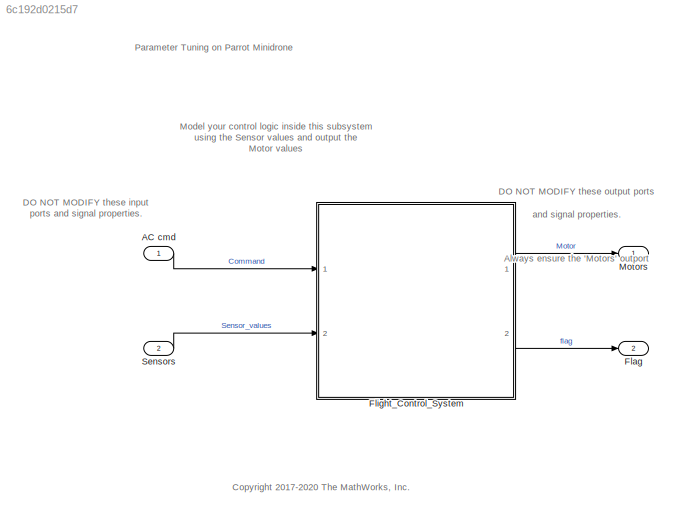
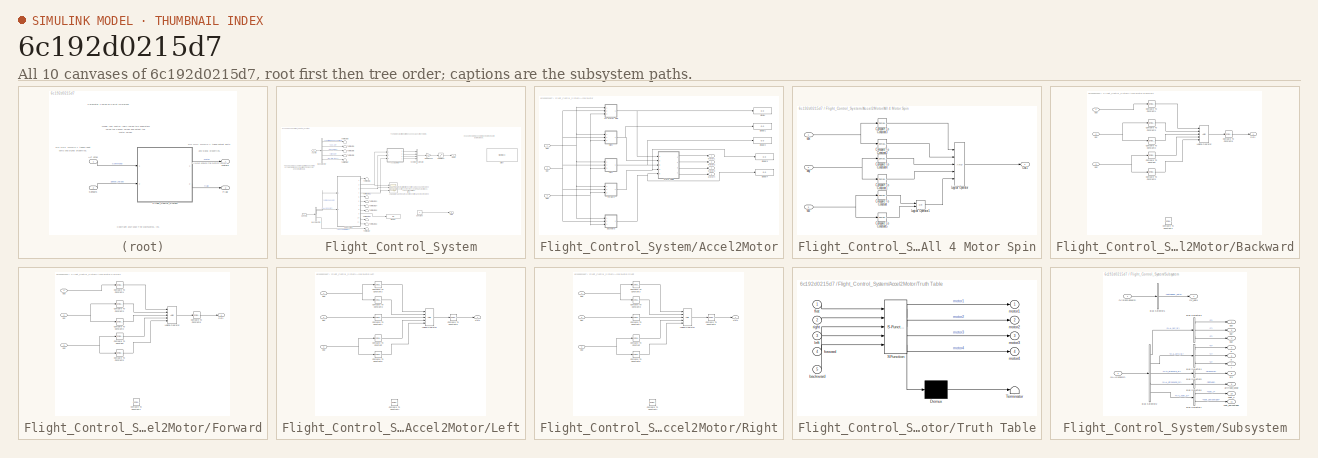
[diagram: thumbnail index - all 10 canvases of the model, root first then tree order]
MODEL slx_6c192d0215d7
KIND model
CONFIG AbsTol = auto
CONFIG EnableMultiTasking = on
CONFIG FixedStep = auto
CONFIG InitFcn = load('BusDefinitions.mat')
CONFIG MaxStep = auto
CONFIG MinStep = auto
CONFIG RelTol = 1e-3
CONFIG SampleTimeConstraint = Unconstrained
CONFIG SolverName = FixedStepAuto
CONFIG StartTime = 0.0
CONFIG StopTime = 100
BLOCK [Inport] AC cmd
  BusOutputAsStruct = on
  OutDataTypeStr = Bus: CommandBus
BLOCK [Outport] Flag
  OutDataTypeStr = uint8
  Port = 2
  PortDimensions = 1
  VectorParamsAs1DForOutWhenUnconnected = off
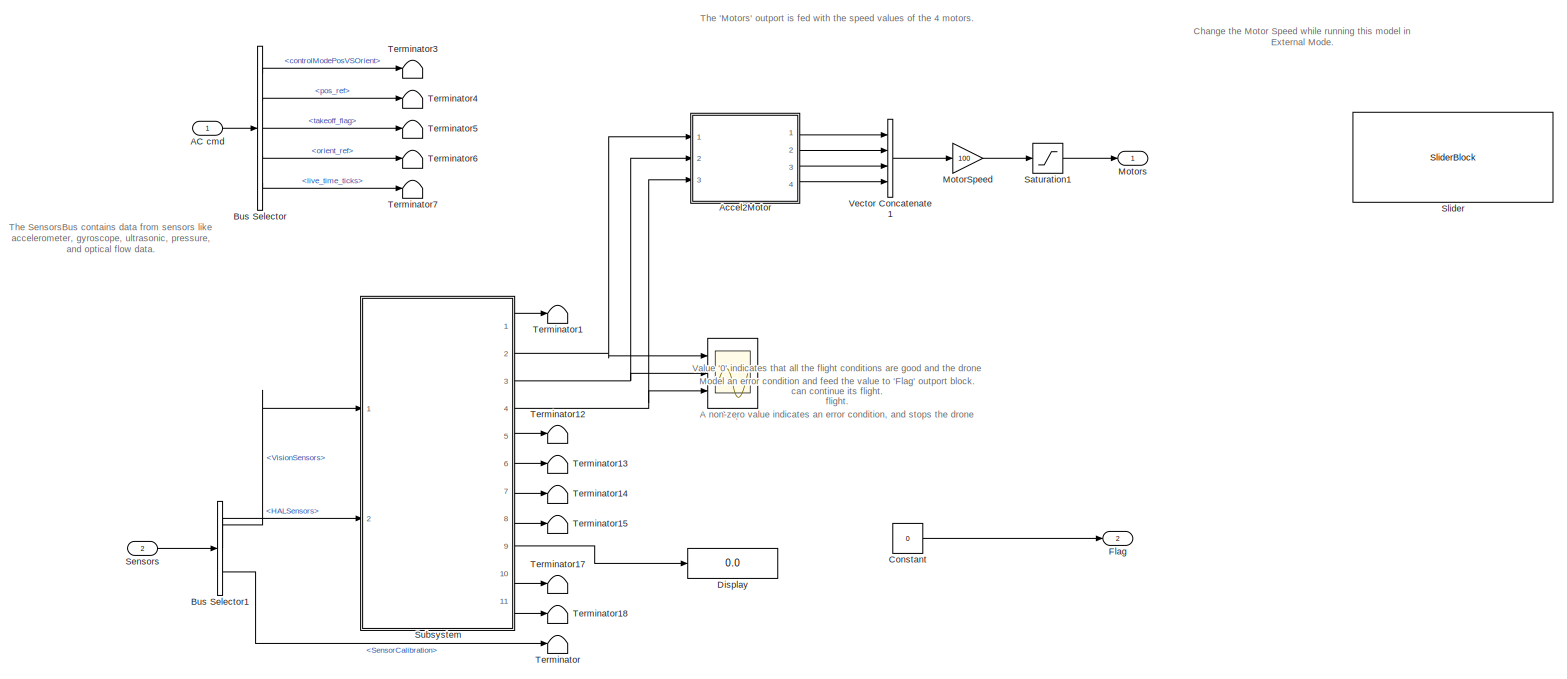
[diagram: Flight_Control_System - part 1/1, most of the canvas]
BLOCK [SubSystem] Flight_Control_System
  InitFcn = codertarget.parrot.internal.fcsSubsystemCallback(gcb);
  Ports = [2, 2]
  RTWSystemCode = Reusable function
  RequestExecContextInheritance = off
BLOCK [Inport] Flight_Control_System/AC cmd
BLOCK [SubSystem] Flight_Control_System/Accel2Motor
  Ports = [3, 4]
  RequestExecContextInheritance = off
BLOCK [SubSystem] Flight_Control_System/Accel2Motor/All 4 Motor Spin
  Ports = [3, 1]
  RequestExecContextInheritance = off
BLOCK [Reference] Flight_Control_System/Accel2Motor/All 4 Motor Spin/Compare To Constant  REF=simulink/Logic and Bit
Operations/Compare
To Constant
  Ports = [1, 1]
  SourceBlock = simulink/Logic and Bit\nOperations/Compare\nTo Constant
  SourceProductBaseCode = SL
  SourceType = Compare To Constant
BLOCK [Reference] Flight_Control_System/Accel2Motor/All 4 Motor Spin/Compare To Constant1  REF=simulink/Logic and Bit
Operations/Compare
To Constant
  Ports = [1, 1]
  SourceBlock = simulink/Logic and Bit\nOperations/Compare\nTo Constant
  SourceProductBaseCode = SL
  SourceType = Compare To Constant
BLOCK [Reference] Flight_Control_System/Accel2Motor/All 4 Motor Spin/Compare To Constant2  REF=simulink/Logic and Bit
Operations/Compare
To Constant
  Ports = [1, 1]
  SourceBlock = simulink/Logic and Bit\nOperations/Compare\nTo Constant
  SourceProductBaseCode = SL
  SourceType = Compare To Constant
BLOCK [Reference] Flight_Control_System/Accel2Motor/All 4 Motor Spin/Compare To Constant3  REF=simulink/Logic and Bit
Operations/Compare
To Constant
  Ports = [1, 1]
  SourceBlock = simulink/Logic and Bit\nOperations/Compare\nTo Constant
  SourceProductBaseCode = SL
  SourceType = Compare To Constant
BLOCK [Reference] Flight_Control_System/Accel2Motor/All 4 Motor Spin/Compare To Constant4  REF=simulink/Logic and Bit
Operations/Compare
To Constant
  Ports = [1, 1]
  SourceBlock = simulink/Logic and Bit\nOperations/Compare\nTo Constant
  SourceProductBaseCode = SL
  SourceType = Compare To Constant
BLOCK [Reference] Flight_Control_System/Accel2Motor/All 4 Motor Spin/Compare To Constant5  REF=simulink/Logic and Bit
Operations/Compare
To Constant
  Ports = [1, 1]
  SourceBlock = simulink/Logic and Bit\nOperations/Compare\nTo Constant
  SourceProductBaseCode = SL
  SourceType = Compare To Constant
BLOCK [Logic] Flight_Control_System/Accel2Motor/All 4 Motor Spin/Logical Operator
  AllPortsSameDT = off
  Inputs = 5
  OutDataTypeStr = boolean
  Ports = [5, 1]
BLOCK [Logic] Flight_Control_System/Accel2Motor/All 4 Motor Spin/Logical Operator1
  AllPortsSameDT = off
  Operator = OR
  OutDataTypeStr = boolean
  Ports = [2, 1]
BLOCK [Outport] Flight_Control_System/Accel2Motor/All 4 Motor Spin/Out1
  VectorParamsAs1DForOutWhenUnconnected = off
BLOCK [Inport] Flight_Control_System/Accel2Motor/All 4 Motor Spin/ddx
BLOCK [Inport] Flight_Control_System/Accel2Motor/All 4 Motor Spin/ddy
  Port = 2
BLOCK [Inport] Flight_Control_System/Accel2Motor/All 4 Motor Spin/ddz
  Port = 3
BLOCK [SubSystem] Flight_Control_System/Accel2Motor/Backward
  Ports = [3, 1]
  RequestExecContextInheritance = off
BLOCK [Reference] Flight_Control_System/Accel2Motor/Backward/Compare To Constant  REF=simulink/Logic and Bit
Operations/Compare
To Constant
  Ports = [1, 1]
  SourceBlock = simulink/Logic and Bit\nOperations/Compare\nTo Constant
  SourceProductBaseCode = SL
  SourceType = Compare To Constant
BLOCK [Reference] Flight_Control_System/Accel2Motor/Backward/Compare To Constant1  REF=simulink/Logic and Bit
Operations/Compare
To Constant
  Commented = on
  Ports = [1, 1]
  SourceBlock = simulink/Logic and Bit\nOperations/Compare\nTo Constant
  SourceProductBaseCode = SL
  SourceType = Compare To Constant
BLOCK [Reference] Flight_Control_System/Accel2Motor/Backward/Compare To Constant2  REF=simulink/Logic and Bit
Operations/Compare
To Constant
  Ports = [1, 1]
  SourceBlock = simulink/Logic and Bit\nOperations/Compare\nTo Constant
  SourceProductBaseCode = SL
  SourceType = Compare To Constant
BLOCK [Reference] Flight_Control_System/Accel2Motor/Backward/Compare To Constant3  REF=simulink/Logic and Bit
Operations/Compare
To Constant
  Ports = [1, 1]
  SourceBlock = simulink/Logic and Bit\nOperations/Compare\nTo Constant
  SourceProductBaseCode = SL
  SourceType = Compare To Constant
BLOCK [Reference] Flight_Control_System/Accel2Motor/Backward/Compare To Constant4  REF=simulink/Logic and Bit
Operations/Compare
To Constant
  Ports = [1, 1]
  SourceBlock = simulink/Logic and Bit\nOperations/Compare\nTo Constant
  SourceProductBaseCode = SL
  SourceType = Compare To Constant
BLOCK [Reference] Flight_Control_System/Accel2Motor/Backward/Compare To Constant5  REF=simulink/Logic and Bit
Operations/Compare
To Constant
  Ports = [1, 1]
  SourceBlock = simulink/Logic and Bit\nOperations/Compare\nTo Constant
  SourceProductBaseCode = SL
  SourceType = Compare To Constant
BLOCK [Reference] Flight_Control_System/Accel2Motor/Backward/Compare To Constant6  REF=simulink/Logic and Bit
Operations/Compare
To Constant
  Ports = [1, 1]
  SourceBlock = simulink/Logic and Bit\nOperations/Compare\nTo Constant
  SourceProductBaseCode = SL
  SourceType = Compare To Constant
BLOCK [Logic] Flight_Control_System/Accel2Motor/Backward/Logical Operator
  AllPortsSameDT = off
  Inputs = 5
  OutDataTypeStr = boolean
  Ports = [5, 1]
BLOCK [Outport] Flight_Control_System/Accel2Motor/Backward/Out1
  VectorParamsAs1DForOutWhenUnconnected = off
BLOCK [Inport] Flight_Control_System/Accel2Motor/Backward/ddx
BLOCK [Inport] Flight_Control_System/Accel2Motor/Backward/ddy
  Port = 2
BLOCK [Inport] Flight_Control_System/Accel2Motor/Backward/ddz
  Port = 3
BLOCK [Display] Flight_Control_System/Accel2Motor/Display
  Decimation = 1
  Ports = [1]
BLOCK [Display] Flight_Control_System/Accel2Motor/Display1
  Decimation = 1
  Ports = [1]
BLOCK [Display] Flight_Control_System/Accel2Motor/Display2
  Decimation = 1
  Ports = [1]
BLOCK [Display] Flight_Control_System/Accel2Motor/Display3
  Decimation = 1
  Ports = [1]
BLOCK [Display] Flight_Control_System/Accel2Motor/Display4
  Decimation = 1
  Ports = [1]
BLOCK [SubSystem] Flight_Control_System/Accel2Motor/Forward
  Ports = [3, 1]
  RequestExecContextInheritance = off
BLOCK [Reference] Flight_Control_System/Accel2Motor/Forward/Compare To Constant  REF=simulink/Logic and Bit
Operations/Compare
To Constant
  Ports = [1, 1]
  SourceBlock = simulink/Logic and Bit\nOperations/Compare\nTo Constant
  SourceProductBaseCode = SL
  SourceType = Compare To Constant
BLOCK [Reference] Flight_Control_System/Accel2Motor/Forward/Compare To Constant1  REF=simulink/Logic and Bit
Operations/Compare
To Constant
  Commented = on
  Ports = [1, 1]
  SourceBlock = simulink/Logic and Bit\nOperations/Compare\nTo Constant
  SourceProductBaseCode = SL
  SourceType = Compare To Constant
BLOCK [Reference] Flight_Control_System/Accel2Motor/Forward/Compare To Constant2  REF=simulink/Logic and Bit
Operations/Compare
To Constant
  Ports = [1, 1]
  SourceBlock = simulink/Logic and Bit\nOperations/Compare\nTo Constant
  SourceProductBaseCode = SL
  SourceType = Compare To Constant
BLOCK [Reference] Flight_Control_System/Accel2Motor/Forward/Compare To Constant3  REF=simulink/Logic and Bit
Operations/Compare
To Constant
  Ports = [1, 1]
  SourceBlock = simulink/Logic and Bit\nOperations/Compare\nTo Constant
  SourceProductBaseCode = SL
  SourceType = Compare To Constant
BLOCK [Reference] Flight_Control_System/Accel2Motor/Forward/Compare To Constant4  REF=simulink/Logic and Bit
Operations/Compare
To Constant
  Ports = [1, 1]
  SourceBlock = simulink/Logic and Bit\nOperations/Compare\nTo Constant
  SourceProductBaseCode = SL
  SourceType = Compare To Constant
BLOCK [Reference] Flight_Control_System/Accel2Motor/Forward/Compare To Constant5  REF=simulink/Logic and Bit
Operations/Compare
To Constant
  Ports = [1, 1]
  SourceBlock = simulink/Logic and Bit\nOperations/Compare\nTo Constant
  SourceProductBaseCode = SL
  SourceType = Compare To Constant
BLOCK [Reference] Flight_Control_System/Accel2Motor/Forward/Compare To Constant6  REF=simulink/Logic and Bit
Operations/Compare
To Constant
  Ports = [1, 1]
  SourceBlock = simulink/Logic and Bit\nOperations/Compare\nTo Constant
  SourceProductBaseCode = SL
  SourceType = Compare To Constant
BLOCK [Logic] Flight_Control_System/Accel2Motor/Forward/Logical Operator
  AllPortsSameDT = off
  Inputs = 5
  OutDataTypeStr = boolean
  Ports = [5, 1]
BLOCK [Outport] Flight_Control_System/Accel2Motor/Forward/Out1
  VectorParamsAs1DForOutWhenUnconnected = off
BLOCK [Inport] Flight_Control_System/Accel2Motor/Forward/ddx
BLOCK [Inport] Flight_Control_System/Accel2Motor/Forward/ddy
  Port = 2
BLOCK [Inport] Flight_Control_System/Accel2Motor/Forward/ddz
  Port = 3
BLOCK [SubSystem] Flight_Control_System/Accel2Motor/Left
  Ports = [3, 1]
  RequestExecContextInheritance = off
BLOCK [Reference] Flight_Control_System/Accel2Motor/Left/Compare To Constant  REF=simulink/Logic and Bit
Operations/Compare
To Constant
  Ports = [1, 1]
  SourceBlock = simulink/Logic and Bit\nOperations/Compare\nTo Constant
  SourceProductBaseCode = SL
  SourceType = Compare To Constant
BLOCK [Reference] Flight_Control_System/Accel2Motor/Left/Compare To Constant1  REF=simulink/Logic and Bit
Operations/Compare
To Constant
  Commented = on
  Ports = [1, 1]
  SourceBlock = simulink/Logic and Bit\nOperations/Compare\nTo Constant
  SourceProductBaseCode = SL
  SourceType = Compare To Constant
BLOCK [Reference] Flight_Control_System/Accel2Motor/Left/Compare To Constant2  REF=simulink/Logic and Bit
Operations/Compare
To Constant
  Ports = [1, 1]
  SourceBlock = simulink/Logic and Bit\nOperations/Compare\nTo Constant
  SourceProductBaseCode = SL
  SourceType = Compare To Constant
BLOCK [Reference] Flight_Control_System/Accel2Motor/Left/Compare To Constant3  REF=simulink/Logic and Bit
Operations/Compare
To Constant
  Ports = [1, 1]
  SourceBlock = simulink/Logic and Bit\nOperations/Compare\nTo Constant
  SourceProductBaseCode = SL
  SourceType = Compare To Constant
BLOCK [Reference] Flight_Control_System/Accel2Motor/Left/Compare To Constant4  REF=simulink/Logic and Bit
Operations/Compare
To Constant
  Ports = [1, 1]
  SourceBlock = simulink/Logic and Bit\nOperations/Compare\nTo Constant
  SourceProductBaseCode = SL
  SourceType = Compare To Constant
BLOCK [Reference] Flight_Control_System/Accel2Motor/Left/Compare To Constant5  REF=simulink/Logic and Bit
Operations/Compare
To Constant
  Ports = [1, 1]
  SourceBlock = simulink/Logic and Bit\nOperations/Compare\nTo Constant
  SourceProductBaseCode = SL
  SourceType = Compare To Constant
BLOCK [Reference] Flight_Control_System/Accel2Motor/Left/Compare To Constant6  REF=simulink/Logic and Bit
Operations/Compare
To Constant
  Ports = [1, 1]
  SourceBlock = simulink/Logic and Bit\nOperations/Compare\nTo Constant
  SourceProductBaseCode = SL
  SourceType = Compare To Constant
BLOCK [Logic] Flight_Control_System/Accel2Motor/Left/Logical Operator
  AllPortsSameDT = off
  Inputs = 5
  OutDataTypeStr = boolean
  Ports = [5, 1]
BLOCK [Outport] Flight_Control_System/Accel2Motor/Left/Out1
  VectorParamsAs1DForOutWhenUnconnected = off
BLOCK [Inport] Flight_Control_System/Accel2Motor/Left/ddx
BLOCK [Inport] Flight_Control_System/Accel2Motor/Left/ddy
  Port = 2
BLOCK [Inport] Flight_Control_System/Accel2Motor/Left/ddz
  Port = 3
BLOCK [Outport] Flight_Control_System/Accel2Motor/Motor1
  VectorParamsAs1DForOutWhenUnconnected = off
BLOCK [Outport] Flight_Control_System/Accel2Motor/Motor2
  Port = 2
  VectorParamsAs1DForOutWhenUnconnected = off
BLOCK [Outport] Flight_Control_System/Accel2Motor/Motor3
  Port = 3
  VectorParamsAs1DForOutWhenUnconnected = off
BLOCK [Outport] Flight_Control_System/Accel2Motor/Motor4
  Port = 4
  VectorParamsAs1DForOutWhenUnconnected = off
BLOCK [SubSystem] Flight_Control_System/Accel2Motor/Right
  Ports = [3, 1]
  RequestExecContextInheritance = off
BLOCK [Reference] Flight_Control_System/Accel2Motor/Right/Compare To Constant  REF=simulink/Logic and Bit
Operations/Compare
To Constant
  Ports = [1, 1]
  SourceBlock = simulink/Logic and Bit\nOperations/Compare\nTo Constant
  SourceProductBaseCode = SL
  SourceType = Compare To Constant
BLOCK [Reference] Flight_Control_System/Accel2Motor/Right/Compare To Constant1  REF=simulink/Logic and Bit
Operations/Compare
To Constant
  Commented = on
  Ports = [1, 1]
  SourceBlock = simulink/Logic and Bit\nOperations/Compare\nTo Constant
  SourceProductBaseCode = SL
  SourceType = Compare To Constant
BLOCK [Reference] Flight_Control_System/Accel2Motor/Right/Compare To Constant2  REF=simulink/Logic and Bit
Operations/Compare
To Constant
  Ports = [1, 1]
  SourceBlock = simulink/Logic and Bit\nOperations/Compare\nTo Constant
  SourceProductBaseCode = SL
  SourceType = Compare To Constant
BLOCK [Reference] Flight_Control_System/Accel2Motor/Right/Compare To Constant3  REF=simulink/Logic and Bit
Operations/Compare
To Constant
  Ports = [1, 1]
  SourceBlock = simulink/Logic and Bit\nOperations/Compare\nTo Constant
  SourceProductBaseCode = SL
  SourceType = Compare To Constant
BLOCK [Reference] Flight_Control_System/Accel2Motor/Right/Compare To Constant4  REF=simulink/Logic and Bit
Operations/Compare
To Constant
  Ports = [1, 1]
  SourceBlock = simulink/Logic and Bit\nOperations/Compare\nTo Constant
  SourceProductBaseCode = SL
  SourceType = Compare To Constant
BLOCK [Reference] Flight_Control_System/Accel2Motor/Right/Compare To Constant5  REF=simulink/Logic and Bit
Operations/Compare
To Constant
  Ports = [1, 1]
  SourceBlock = simulink/Logic and Bit\nOperations/Compare\nTo Constant
  SourceProductBaseCode = SL
  SourceType = Compare To Constant
BLOCK [Reference] Flight_Control_System/Accel2Motor/Right/Compare To Constant6  REF=simulink/Logic and Bit
Operations/Compare
To Constant
  Ports = [1, 1]
  SourceBlock = simulink/Logic and Bit\nOperations/Compare\nTo Constant
  SourceProductBaseCode = SL
  SourceType = Compare To Constant
BLOCK [Logic] Flight_Control_System/Accel2Motor/Right/Logical Operator
  AllPortsSameDT = off
  Inputs = 5
  OutDataTypeStr = boolean
  Ports = [5, 1]
BLOCK [Outport] Flight_Control_System/Accel2Motor/Right/Out1
  VectorParamsAs1DForOutWhenUnconnected = off
BLOCK [Inport] Flight_Control_System/Accel2Motor/Right/ddx
BLOCK [Inport] Flight_Control_System/Accel2Motor/Right/ddy
  Port = 2
BLOCK [Inport] Flight_Control_System/Accel2Motor/Right/ddz
  Port = 3
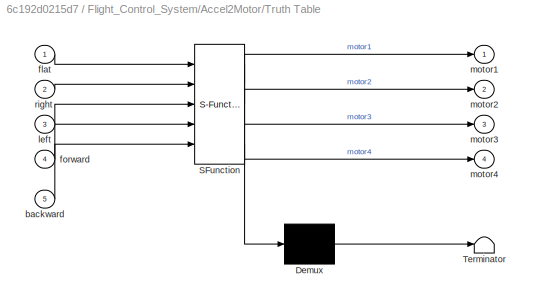
BLOCK [SubSystem] Flight_Control_System/Accel2Motor/Truth Table
  ErrorFcn = Stateflow.Translate.translate
  PermitHierarchicalResolution = ExplicitOnly
  Ports = [5, 4]
  RequestExecContextInheritance = off
  SFBlockType = Truth Table
  TreatAsAtomicUnit = on
BLOCK [Demux] Flight_Control_System/Accel2Motor/Truth Table/ Demux 
  Outputs = 1
  Ports = [1, 1]
BLOCK [S-Function] Flight_Control_System/Accel2Motor/Truth Table/ SFunction 
  EnableBusSupport = off
  FunctionName = sf_sfun
  PortCounts = [5 5]
  Ports = [5, 5]
  SFcnIsStateOwnerBlock = off
  SFunctionDeploymentMode = off
  Tag = Stateflow S-Function 2
BLOCK [Terminator] Flight_Control_System/Accel2Motor/Truth Table/ Terminator 
BLOCK [Inport] Flight_Control_System/Accel2Motor/Truth Table/backward
  Port = 5
BLOCK [Inport] Flight_Control_System/Accel2Motor/Truth Table/flat
BLOCK [Inport] Flight_Control_System/Accel2Motor/Truth Table/forward
  Port = 4
BLOCK [Inport] Flight_Control_System/Accel2Motor/Truth Table/left
  Port = 3
BLOCK [Outport] Flight_Control_System/Accel2Motor/Truth Table/motor1
  VectorParamsAs1DForOutWhenUnconnected = off
BLOCK [Outport] Flight_Control_System/Accel2Motor/Truth Table/motor2
  Port = 2
  VectorParamsAs1DForOutWhenUnconnected = off
BLOCK [Outport] Flight_Control_System/Accel2Motor/Truth Table/motor3
  Port = 3
  VectorParamsAs1DForOutWhenUnconnected = off
BLOCK [Outport] Flight_Control_System/Accel2Motor/Truth Table/motor4
  Port = 4
  VectorParamsAs1DForOutWhenUnconnected = off
BLOCK [Inport] Flight_Control_System/Accel2Motor/Truth Table/right
  Port = 2
BLOCK [Inport] Flight_Control_System/Accel2Motor/ddx
BLOCK [Inport] Flight_Control_System/Accel2Motor/ddy
  Port = 2
BLOCK [Inport] Flight_Control_System/Accel2Motor/ddz
  Port = 3
BLOCK [BusSelector] Flight_Control_System/Bus Selector
  OutputSignals = controlModePosVSOrient,pos_ref,takeoff_flag,orient_ref,live_time_ticks
  Ports = [1, 5]
BLOCK [BusSelector] Flight_Control_System/Bus Selector1
  OutputSignals = VisionSensors,HALSensors,SensorCalibration
  Ports = [1, 3]
BLOCK [Constant] Flight_Control_System/Constant
  OutDataTypeStr = uint8
  SampleTime = Ts
  Value = 0
BLOCK [Display] Flight_Control_System/Display
  Decimation = 1
  Ports = [1]
BLOCK [Outport] Flight_Control_System/Flag
  Port = 2
  VectorParamsAs1DForOutWhenUnconnected = off
BLOCK [Gain] Flight_Control_System/MotorSpeed
  Gain = 100
  OutDataTypeStr = single
BLOCK [Outport] Flight_Control_System/Motors
  VectorParamsAs1DForOutWhenUnconnected = off
BLOCK [Saturate] Flight_Control_System/Saturation1
  LowerLimit = 0
  OutDataTypeStr = single
  UpperLimit = 500
BLOCK [Scope] Flight_Control_System/Scope
  Floating = off
  NumInputPorts = 3
  Ports = [3]
  ScopeSpecificationString = Simulink.scopes.TimeScopeBlockCfg('CurrentConfiguration', extmgr.ConfigurationSet(extmgr.Configuration('Core','General UI',true),extmgr.Configuration('Core','Source UI',true),extmgr.Configuration('Sources','WiredSimulink',true),extmgr.Configuration('Visuals','Time Domain',true,'SerializedDisplays',{struct('MinYLimReal','-5.07149','MaxYLimReal','8.49437','YLabelReal','ddx(m/s^2)','MinYLimMag','0.00...<+2764ch>
BLOCK [Inport] Flight_Control_System/Sensors
  Port = 2
BLOCK [SliderBlock] Flight_Control_System/Slider
  ScaleMax = 500
BLOCK [SubSystem] Flight_Control_System/Subsystem
  Ports = [2, 11]
  RequestExecContextInheritance = off
BLOCK [Inport] Flight_Control_System/Subsystem/<HALSensors>
  Port = 2
BLOCK [Inport] Flight_Control_System/Subsystem/<VisionSensors>
BLOCK [BusSelector] Flight_Control_System/Subsystem/Bus Selector1
  OutputSignals = opticalFlow_data
  Ports = [1, 1]
BLOCK [BusSelector] Flight_Control_System/Subsystem/Bus Selector2
  OutputSignals = HAL_acc_SI,HAL_gyro_SI,HAL_pressure_SI,HAL_ultrasound_SI,HAL_vbat_SI
  Ports = [1, 5]
BLOCK [BusSelector] Flight_Control_System/Subsystem/Bus Selector3
  OutputSignals = x,y,z
  Ports = [1, 3]
BLOCK [BusSelector] Flight_Control_System/Subsystem/Bus Selector4
  OutputSignals = x,y,z
  Ports = [1, 3]
BLOCK [BusSelector] Flight_Control_System/Subsystem/Bus Selector5
  OutputSignals = pressure
  Ports = [1, 1]
BLOCK [BusSelector] Flight_Control_System/Subsystem/Bus Selector6
  OutputSignals = altitude
  Ports = [1, 1]
BLOCK [BusSelector] Flight_Control_System/Subsystem/Bus Selector7
  OutputSignals = vbat_V,vbat_percentage
  Ports = [1, 2]
BLOCK [Outport] Flight_Control_System/Subsystem/OF_data
  VectorParamsAs1DForOutWhenUnconnected = off
BLOCK [Outport] Flight_Control_System/Subsystem/altitude_sonar
  Port = 9
  VectorParamsAs1DForOutWhenUnconnected = off
BLOCK [Outport] Flight_Control_System/Subsystem/ddx
  Port = 2
  VectorParamsAs1DForOutWhenUnconnected = off
BLOCK [Outport] Flight_Control_System/Subsystem/ddy
  Port = 3
  VectorParamsAs1DForOutWhenUnconnected = off
BLOCK [Outport] Flight_Control_System/Subsystem/ddz
  Port = 4
  VectorParamsAs1DForOutWhenUnconnected = off
BLOCK [Outport] Flight_Control_System/Subsystem/p
  Port = 5
  VectorParamsAs1DForOutWhenUnconnected = off
BLOCK [Outport] Flight_Control_System/Subsystem/prs
  Port = 8
  VectorParamsAs1DForOutWhenUnconnected = off
BLOCK [Outport] Flight_Control_System/Subsystem/q
  Port = 6
  VectorParamsAs1DForOutWhenUnconnected = off
BLOCK [Outport] Flight_Control_System/Subsystem/r
  Port = 7
  VectorParamsAs1DForOutWhenUnconnected = off
BLOCK [Outport] Flight_Control_System/Subsystem/vbat_V
  Port = 10
  VectorParamsAs1DForOutWhenUnconnected = off
BLOCK [Outport] Flight_Control_System/Subsystem/vbat_percentage
  Port = 11
  VectorParamsAs1DForOutWhenUnconnected = off
BLOCK [Terminator] Flight_Control_System/Terminator
BLOCK [Terminator] Flight_Control_System/Terminator1
BLOCK [Terminator] Flight_Control_System/Terminator12
BLOCK [Terminator] Flight_Control_System/Terminator13
BLOCK [Terminator] Flight_Control_System/Terminator14
BLOCK [Terminator] Flight_Control_System/Terminator15
BLOCK [Terminator] Flight_Control_System/Terminator17
BLOCK [Terminator] Flight_Control_System/Terminator18
BLOCK [Terminator] Flight_Control_System/Terminator3
BLOCK [Terminator] Flight_Control_System/Terminator4
BLOCK [Terminator] Flight_Control_System/Terminator5
BLOCK [Terminator] Flight_Control_System/Terminator6
BLOCK [Terminator] Flight_Control_System/Terminator7
BLOCK [Concatenate] Flight_Control_System/Vector Concatenate1
  NumInputs = 4
  Ports = [4, 1]
BLOCK [Outport] Motors
  OutDataTypeStr = single
  PortDimensions = [1 4]
  VectorParamsAs1DForOutWhenUnconnected = off
BLOCK [Inport] Sensors
  BusOutputAsStruct = on
  OutDataTypeStr = Bus: SensorsBus
  Port = 2
ANNOTATION (root): <copyright redacted>
ANNOTATION (root): DO NOT MODIFY these input ports and signal properties.
ANNOTATION (root): DO NOT MODIFY these output ports and signal properties. Always ensure the 'Motors' outport is fed with a 1 x 4 single vector. Always ensure the 'Flag' outport is fed with a 1 x 1 uint8 value.
ANNOTATION (root): Model your control logic inside this subsystem using the Sensor values and output the Motor values
ANNOTATION (root): Parameter Tuning on Parrot Minidrone
ANNOTATION Flight_Control_System: Change the Motor Speed while running this model in External Mode.
ANNOTATION Flight_Control_System: Model an error condition and feed the value to 'Flag' outport block. Value '0' indicates that all the flight conditions are good and the drone can continue its flight. A non-zero value indicates an error condition, and stops the drone flight.
ANNOTATION Flight_Control_System: The 'Motors' outport is fed with the speed values of the 4 motors.
ANNOTATION Flight_Control_System: The SensorsBus contains data from sensors like accelerometer, gyroscope, ultrasonic, pressure, and optical flow data.
LINE AC cmd:1 -> Flight_Control_System:1
LINE Flight_Control_System/AC cmd:1 -> Flight_Control_System/Bus Selector:1
LINE Flight_Control_System/Accel2Motor/All 4 Motor Spin/Compare To Constant1:1 -> Flight_Control_System/Accel2Motor/All 4 Motor Spin/Logical Operator:4
LINE Flight_Control_System/Accel2Motor/All 4 Motor Spin/Compare To Constant2:1 -> Flight_Control_System/Accel2Motor/All 4 Motor Spin/Logical Operator:2
LINE Flight_Control_System/Accel2Motor/All 4 Motor Spin/Compare To Constant3:1 -> Flight_Control_System/Accel2Motor/All 4 Motor Spin/Logical Operator:1
LINE Flight_Control_System/Accel2Motor/All 4 Motor Spin/Compare To Constant4:1 -> Flight_Control_System/Accel2Motor/All 4 Motor Spin/Logical Operator:3
LINE Flight_Control_System/Accel2Motor/All 4 Motor Spin/Compare To Constant5:1 -> Flight_Control_System/Accel2Motor/All 4 Motor Spin/Logical Operator1:2
LINE Flight_Control_System/Accel2Motor/All 4 Motor Spin/Compare To Constant:1 -> Flight_Control_System/Accel2Motor/All 4 Motor Spin/Logical Operator1:1
LINE Flight_Control_System/Accel2Motor/All 4 Motor Spin/Logical Operator1:1 -> Flight_Control_System/Accel2Motor/All 4 Motor Spin/Logical Operator:5
LINE Flight_Control_System/Accel2Motor/All 4 Motor Spin/Logical Operator:1 -> Flight_Control_System/Accel2Motor/All 4 Motor Spin/Out1:1
NET Flight_Control_System/Accel2Motor/All 4 Motor Spin/ddx:1 -> Flight_Control_System/Accel2Motor/All 4 Motor Spin/Compare To Constant2:1, Flight_Control_System/Accel2Motor/All 4 Motor Spin/Compare To Constant3:1
NET Flight_Control_System/Accel2Motor/All 4 Motor Spin/ddy:1 -> Flight_Control_System/Accel2Motor/All 4 Motor Spin/Compare To Constant1:1, Flight_Control_System/Accel2Motor/All 4 Motor Spin/Compare To Constant4:1
NET Flight_Control_System/Accel2Motor/All 4 Motor Spin/ddz:1 -> Flight_Control_System/Accel2Motor/All 4 Motor Spin/Compare To Constant5:1, Flight_Control_System/Accel2Motor/All 4 Motor Spin/Compare To Constant:1
NET Flight_Control_System/Accel2Motor/All 4 Motor Spin:1 -> Flight_Control_System/Accel2Motor/Display:1, Flight_Control_System/Accel2Motor/Truth Table:1
LINE Flight_Control_System/Accel2Motor/Backward/Compare To Constant2:1 -> Flight_Control_System/Accel2Motor/Backward/Logical Operator:3
LINE Flight_Control_System/Accel2Motor/Backward/Compare To Constant3:1 -> Flight_Control_System/Accel2Motor/Backward/Logical Operator:2
LINE Flight_Control_System/Accel2Motor/Backward/Compare To Constant4:1 -> Flight_Control_System/Accel2Motor/Backward/Logical Operator:1
LINE Flight_Control_System/Accel2Motor/Backward/Compare To Constant5:1 -> Flight_Control_System/Accel2Motor/Backward/Logical Operator:5
LINE Flight_Control_System/Accel2Motor/Backward/Compare To Constant6:1 -> Flight_Control_System/Accel2Motor/Backward/Out1:1
LINE Flight_Control_System/Accel2Motor/Backward/Compare To Constant:1 -> Flight_Control_System/Accel2Motor/Backward/Logical Operator:4
LINE Flight_Control_System/Accel2Motor/Backward/Logical Operator:1 -> Flight_Control_System/Accel2Motor/Backward/Compare To Constant6:1
LINE Flight_Control_System/Accel2Motor/Backward/ddx:1 -> Flight_Control_System/Accel2Motor/Backward/Compare To Constant4:1
NET Flight_Control_System/Accel2Motor/Backward/ddy:1 -> Flight_Control_System/Accel2Motor/Backward/Compare To Constant2:1, Flight_Control_System/Accel2Motor/Backward/Compare To Constant3:1
NET Flight_Control_System/Accel2Motor/Backward/ddz:1 -> Flight_Control_System/Accel2Motor/Backward/Compare To Constant5:1, Flight_Control_System/Accel2Motor/Backward/Compare To Constant:1
NET Flight_Control_System/Accel2Motor/Backward:1 -> Flight_Control_System/Accel2Motor/Display4:1, Flight_Control_System/Accel2Motor/Truth Table:5
LINE Flight_Control_System/Accel2Motor/Forward/Compare To Constant2:1 -> Flight_Control_System/Accel2Motor/Forward/Logical Operator:3
LINE Flight_Control_System/Accel2Motor/Forward/Compare To Constant3:1 -> Flight_Control_System/Accel2Motor/Forward/Logical Operator:2
LINE Flight_Control_System/Accel2Motor/Forward/Compare To Constant4:1 -> Flight_Control_System/Accel2Motor/Forward/Logical Operator:1
LINE Flight_Control_System/Accel2Motor/Forward/Compare To Constant5:1 -> Flight_Control_System/Accel2Motor/Forward/Logical Operator:5
LINE Flight_Control_System/Accel2Motor/Forward/Compare To Constant6:1 -> Flight_Control_System/Accel2Motor/Forward/Out1:1
LINE Flight_Control_System/Accel2Motor/Forward/Compare To Constant:1 -> Flight_Control_System/Accel2Motor/Forward/Logical Operator:4
LINE Flight_Control_System/Accel2Motor/Forward/Logical Operator:1 -> Flight_Control_System/Accel2Motor/Forward/Compare To Constant6:1
LINE Flight_Control_System/Accel2Motor/Forward/ddx:1 -> Flight_Control_System/Accel2Motor/Forward/Compare To Constant4:1
NET Flight_Control_System/Accel2Motor/Forward/ddy:1 -> Flight_Control_System/Accel2Motor/Forward/Compare To Constant2:1, Flight_Control_System/Accel2Motor/Forward/Compare To Constant3:1
NET Flight_Control_System/Accel2Motor/Forward/ddz:1 -> Flight_Control_System/Accel2Motor/Forward/Compare To Constant5:1, Flight_Control_System/Accel2Motor/Forward/Compare To Constant:1
NET Flight_Control_System/Accel2Motor/Forward:1 -> Flight_Control_System/Accel2Motor/Display3:1, Flight_Control_System/Accel2Motor/Truth Table:4
LINE Flight_Control_System/Accel2Motor/Left/Compare To Constant2:1 -> Flight_Control_System/Accel2Motor/Left/Logical Operator:2
LINE Flight_Control_System/Accel2Motor/Left/Compare To Constant3:1 -> Flight_Control_System/Accel2Motor/Left/Logical Operator:1
LINE Flight_Control_System/Accel2Motor/Left/Compare To Constant4:1 -> Flight_Control_System/Accel2Motor/Left/Logical Operator:3
LINE Flight_Control_System/Accel2Motor/Left/Compare To Constant5:1 -> Flight_Control_System/Accel2Motor/Left/Logical Operator:5
LINE Flight_Control_System/Accel2Motor/Left/Compare To Constant6:1 -> Flight_Control_System/Accel2Motor/Left/Out1:1
LINE Flight_Control_System/Accel2Motor/Left/Compare To Constant:1 -> Flight_Control_System/Accel2Motor/Left/Logical Operator:4
LINE Flight_Control_System/Accel2Motor/Left/Logical Operator:1 -> Flight_Control_System/Accel2Motor/Left/Compare To Constant6:1
NET Flight_Control_System/Accel2Motor/Left/ddx:1 -> Flight_Control_System/Accel2Motor/Left/Compare To Constant2:1, Flight_Control_System/Accel2Motor/Left/Compare To Constant3:1
LINE Flight_Control_System/Accel2Motor/Left/ddy:1 -> Flight_Control_System/Accel2Motor/Left/Compare To Constant4:1
NET Flight_Control_System/Accel2Motor/Left/ddz:1 -> Flight_Control_System/Accel2Motor/Left/Compare To Constant5:1, Flight_Control_System/Accel2Motor/Left/Compare To Constant:1
NET Flight_Control_System/Accel2Motor/Left:1 -> Flight_Control_System/Accel2Motor/Display2:1, Flight_Control_System/Accel2Motor/Truth Table:3
LINE Flight_Control_System/Accel2Motor/Right/Compare To Constant2:1 -> Flight_Control_System/Accel2Motor/Right/Logical Operator:2
LINE Flight_Control_System/Accel2Motor/Right/Compare To Constant3:1 -> Flight_Control_System/Accel2Motor/Right/Logical Operator:1
LINE Flight_Control_System/Accel2Motor/Right/Compare To Constant4:1 -> Flight_Control_System/Accel2Motor/Right/Logical Operator:3
LINE Flight_Control_System/Accel2Motor/Right/Compare To Constant5:1 -> Flight_Control_System/Accel2Motor/Right/Logical Operator:5
LINE Flight_Control_System/Accel2Motor/Right/Compare To Constant6:1 -> Flight_Control_System/Accel2Motor/Right/Out1:1
LINE Flight_Control_System/Accel2Motor/Right/Compare To Constant:1 -> Flight_Control_System/Accel2Motor/Right/Logical Operator:4
LINE Flight_Control_System/Accel2Motor/Right/Logical Operator:1 -> Flight_Control_System/Accel2Motor/Right/Compare To Constant6:1
NET Flight_Control_System/Accel2Motor/Right/ddx:1 -> Flight_Control_System/Accel2Motor/Right/Compare To Constant2:1, Flight_Control_System/Accel2Motor/Right/Compare To Constant3:1
LINE Flight_Control_System/Accel2Motor/Right/ddy:1 -> Flight_Control_System/Accel2Motor/Right/Compare To Constant4:1
NET Flight_Control_System/Accel2Motor/Right/ddz:1 -> Flight_Control_System/Accel2Motor/Right/Compare To Constant5:1, Flight_Control_System/Accel2Motor/Right/Compare To Constant:1
NET Flight_Control_System/Accel2Motor/Right:1 -> Flight_Control_System/Accel2Motor/Display1:1, Flight_Control_System/Accel2Motor/Truth Table:2
LINE Flight_Control_System/Accel2Motor/Truth Table:1 -> Flight_Control_System/Accel2Motor/Motor1:1
LINE Flight_Control_System/Accel2Motor/Truth Table:2 -> Flight_Control_System/Accel2Motor/Motor2:1
LINE Flight_Control_System/Accel2Motor/Truth Table:3 -> Flight_Control_System/Accel2Motor/Motor3:1
LINE Flight_Control_System/Accel2Motor/Truth Table:4 -> Flight_Control_System/Accel2Motor/Motor4:1
NET Flight_Control_System/Accel2Motor/ddx:1 -> Flight_Control_System/Accel2Motor/All 4 Motor Spin:1, Flight_Control_System/Accel2Motor/Backward:1, Flight_Control_System/Accel2Motor/Forward:1, Flight_Control_System/Accel2Motor/Left:1, Flight_Control_System/Accel2Motor/Right:1
NET Flight_Control_System/Accel2Motor/ddy:1 -> Flight_Control_System/Accel2Motor/All 4 Motor Spin:2, Flight_Control_System/Accel2Motor/Backward:2, Flight_Control_System/Accel2Motor/Forward:2, Flight_Control_System/Accel2Motor/Left:2, Flight_Control_System/Accel2Motor/Right:2
NET Flight_Control_System/Accel2Motor/ddz:1 -> Flight_Control_System/Accel2Motor/All 4 Motor Spin:3, Flight_Control_System/Accel2Motor/Backward:3, Flight_Control_System/Accel2Motor/Forward:3, Flight_Control_System/Accel2Motor/Left:3, Flight_Control_System/Accel2Motor/Right:3
LINE Flight_Control_System/Accel2Motor:1 -> Flight_Control_System/Vector Concatenate1:1
LINE Flight_Control_System/Accel2Motor:2 -> Flight_Control_System/Vector Concatenate1:2
LINE Flight_Control_System/Accel2Motor:3 -> Flight_Control_System/Vector Concatenate1:3
LINE Flight_Control_System/Accel2Motor:4 -> Flight_Control_System/Vector Concatenate1:4
LINE Flight_Control_System/Bus Selector1:1 -> Flight_Control_System/Subsystem:1
LINE Flight_Control_System/Bus Selector1:2 -> Flight_Control_System/Subsystem:2
LINE Flight_Control_System/Bus Selector1:3 -> Flight_Control_System/Terminator:1
LINE Flight_Control_System/Bus Selector:1 -> Flight_Control_System/Terminator3:1
LINE Flight_Control_System/Bus Selector:2 -> Flight_Control_System/Terminator4:1
LINE Flight_Control_System/Bus Selector:3 -> Flight_Control_System/Terminator5:1
LINE Flight_Control_System/Bus Selector:4 -> Flight_Control_System/Terminator6:1
LINE Flight_Control_System/Bus Selector:5 -> Flight_Control_System/Terminator7:1
LINE Flight_Control_System/Constant:1 -> Flight_Control_System/Flag:1
LINE Flight_Control_System/MotorSpeed:1 -> Flight_Control_System/Saturation1:1
LINE Flight_Control_System/Saturation1:1 -> Flight_Control_System/Motors:1
LINE Flight_Control_System/Sensors:1 -> Flight_Control_System/Bus Selector1:1
LINE Flight_Control_System/Subsystem/<HALSensors>:1 -> Flight_Control_System/Subsystem/Bus Selector2:1
LINE Flight_Control_System/Subsystem/<VisionSensors>:1 -> Flight_Control_System/Subsystem/Bus Selector1:1
LINE Flight_Control_System/Subsystem/Bus Selector1:1 -> Flight_Control_System/Subsystem/OF_data:1
LINE Flight_Control_System/Subsystem/Bus Selector2:1 -> Flight_Control_System/Subsystem/Bus Selector3:1
LINE Flight_Control_System/Subsystem/Bus Selector2:2 -> Flight_Control_System/Subsystem/Bus Selector4:1
LINE Flight_Control_System/Subsystem/Bus Selector2:3 -> Flight_Control_System/Subsystem/Bus Selector5:1
LINE Flight_Control_System/Subsystem/Bus Selector2:4 -> Flight_Control_System/Subsystem/Bus Selector6:1
LINE Flight_Control_System/Subsystem/Bus Selector2:5 -> Flight_Control_System/Subsystem/Bus Selector7:1
LINE Flight_Control_System/Subsystem/Bus Selector3:1 -> Flight_Control_System/Subsystem/ddx:1
LINE Flight_Control_System/Subsystem/Bus Selector3:2 -> Flight_Control_System/Subsystem/ddy:1
LINE Flight_Control_System/Subsystem/Bus Selector3:3 -> Flight_Control_System/Subsystem/ddz:1
LINE Flight_Control_System/Subsystem/Bus Selector4:1 -> Flight_Control_System/Subsystem/p:1
LINE Flight_Control_System/Subsystem/Bus Selector4:2 -> Flight_Control_System/Subsystem/q:1
LINE Flight_Control_System/Subsystem/Bus Selector4:3 -> Flight_Control_System/Subsystem/r:1
LINE Flight_Control_System/Subsystem/Bus Selector5:1 -> Flight_Control_System/Subsystem/prs:1
LINE Flight_Control_System/Subsystem/Bus Selector6:1 -> Flight_Control_System/Subsystem/altitude_sonar:1
LINE Flight_Control_System/Subsystem/Bus Selector7:1 -> Flight_Control_System/Subsystem/vbat_V:1
LINE Flight_Control_System/Subsystem/Bus Selector7:2 -> Flight_Control_System/Subsystem/vbat_percentage:1
LINE Flight_Control_System/Subsystem:1 -> Flight_Control_System/Terminator1:1
LINE Flight_Control_System/Subsystem:10 -> Flight_Control_System/Terminator17:1
LINE Flight_Control_System/Subsystem:11 -> Flight_Control_System/Terminator18:1
NET Flight_Control_System/Subsystem:2 -> Flight_Control_System/Accel2Motor:1, Flight_Control_System/Scope:1
NET Flight_Control_System/Subsystem:3 -> Flight_Control_System/Accel2Motor:2, Flight_Control_System/Scope:2
NET Flight_Control_System/Subsystem:4 -> Flight_Control_System/Accel2Motor:3, Flight_Control_System/Scope:3
LINE Flight_Control_System/Subsystem:5 -> Flight_Control_System/Terminator12:1
LINE Flight_Control_System/Subsystem:6 -> Flight_Control_System/Terminator13:1
LINE Flight_Control_System/Subsystem:7 -> Flight_Control_System/Terminator14:1
LINE Flight_Control_System/Subsystem:8 -> Flight_Control_System/Terminator15:1
LINE Flight_Control_System/Subsystem:9 -> Flight_Control_System/Display:1
LINE Flight_Control_System/Vector Concatenate1:1 -> Flight_Control_System/MotorSpeed:1
LINE Flight_Control_System:1 -> Motors:1
LINE Flight_Control_System:2 -> Flag:1
LINE Sensors:1 -> Flight_Control_System:2
note: NET lines group one-source signal fan-out (src -> all destinations, sorted); 1:1 wires keep LINE
CHART Flight_Control_System/Accel2Motor/Truth Table states=1 transitions=1
  STATE_LABEL 'tt_blk_kernel'
  STATE_LABEL 'SCRIPT:\nfunction [motor1, motor2, motor3, motor4] = fcn(flat, right, left, forward, backward)\n\nINIT();\n\naVarTruthTableCondition_1 = false;\naVarTruthTableCondition_2 = false;\naVarTruthTableCondition_3 = false;\naVarTruthTableCondition_4 = false;\naVarTruthTableCondition_5 = false;\n\n\n% Flat (UP/Down)\n\naVarTruthTableCondition_1 = logical(flat == 1);\n\n% Right Bend\n\naVarTruthTableCondition_2 = logical(ri...<+1683ch>'
CHART  states=0 transitions=0
